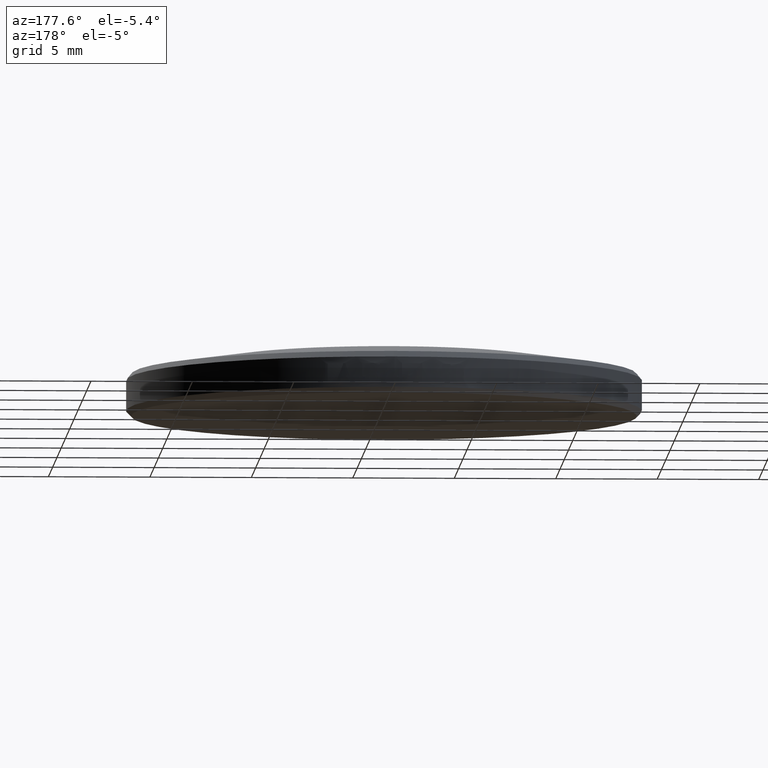
[diagram: clean part render]
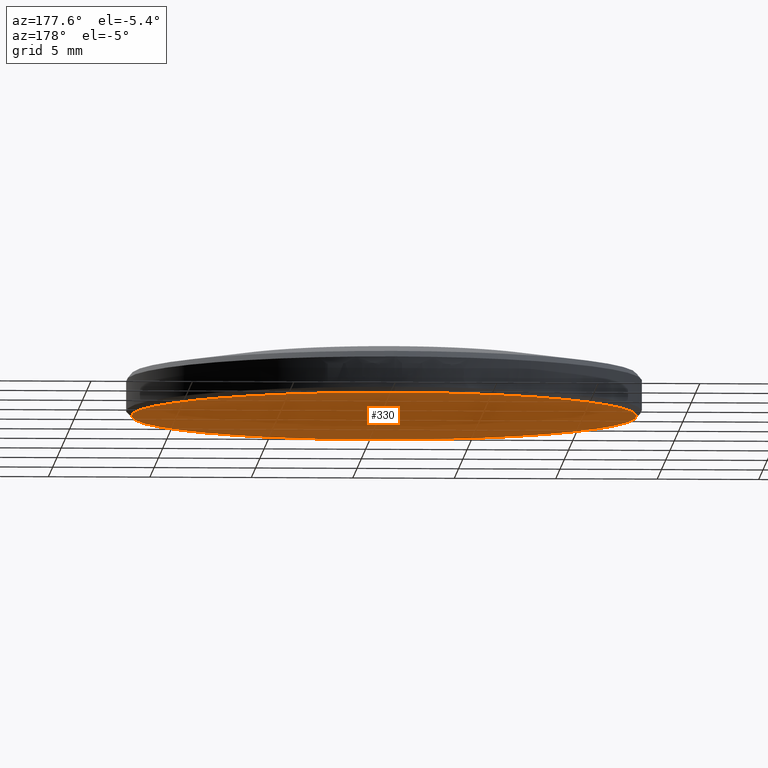
[diagram: same view with one face highlighted and labeled with its STEP entity id]
A machine part, auxiliary view. The second image highlights one B-rep face of the part: STEP entity #330.
In plain terms, the highlighted planar face has unit normal (-0, 0, -1).
Its self-contained STEP definition (entity closure, byte-faithful):
#72 = FACE_OUTER_BOUND ( 'NONE', #1272, .T. ) ;
#74 = DIRECTION ( 'NONE',  ( -0.0000000000000000000, 1.224646799147353207E-16, -1.000000000000000000 ) ) ;
#90 = VERTEX_POINT ( 'NONE', #1301 ) ;
#94 = CARTESIAN_POINT ( 'NONE',  ( -0.01648550022812553251, 1.353768593033155110, 0.7360616388966217949 ) ) ;
#237 = CIRCLE ( 'NONE', #2706, 0.4901574803149604809 ) ;
#288 = VERTEX_POINT ( 'NONE', #725 ) ;
#330 = ADVANCED_FACE ( 'NONE', ( #72 ), #1385, .T. ) ;
#408 = DIRECTION ( 'NONE',  ( 0.0000000000000000000, 1.000000000000000000, 0.0000000000000000000 ) ) ;
#533 = DIRECTION ( 'NONE',  ( -0.0000000000000000000, 1.224646799147353207E-16, -1.000000000000000000 ) ) ;
#559 = EDGE_CURVE ( 'NONE', #90, #288, #610, .T. ) ;
#610 = CIRCLE ( 'NONE', #1037, 0.4901574803149604809 ) ;
#725 = CARTESIAN_POINT ( 'NONE',  ( -0.01648550022812547353, 1.343926073348115757, 0.7360616388966217949 ) ) ;
#743 = AXIS2_PLACEMENT_3D ( 'NONE', #94, #74, #1416 ) ;
#927 = ORIENTED_EDGE ( 'NONE', *, *, #559, .T. ) ;
#1037 = AXIS2_PLACEMENT_3D ( 'NONE', #2129, #1709, #408 ) ;
#1186 = CARTESIAN_POINT ( 'NONE',  ( -0.01648550022812553251, 0.8537685930331552209, 0.7360616388966217949 ) ) ;
#1272 = EDGE_LOOP ( 'NONE', ( #927, #1276 ) ) ;
#1276 = ORIENTED_EDGE ( 'NONE', *, *, #2590, .T. ) ;
#1301 = CARTESIAN_POINT ( 'NONE',  ( -0.01648550022812553251, 0.3636111127181945735, 0.7360616388966217949 ) ) ;
#1385 = PLANE ( 'NONE',  #743 ) ;
#1416 = DIRECTION ( 'NONE',  ( 0.0000000000000000000, 1.000000000000000000, 1.224646799147353207E-16 ) ) ;
#1709 = DIRECTION ( 'NONE',  ( -0.0000000000000000000, 1.224646799147353207E-16, -1.000000000000000000 ) ) ;
#2034 = DIRECTION ( 'NONE',  ( 0.0000000000000000000, 1.000000000000000000, 0.0000000000000000000 ) ) ;
#2129 = CARTESIAN_POINT ( 'NONE',  ( -0.01648550022812553251, 0.8537685930331552209, 0.7360616388966217949 ) ) ;
#2590 = EDGE_CURVE ( 'NONE', #288, #90, #237, .T. ) ;
#2706 = AXIS2_PLACEMENT_3D ( 'NONE', #1186, #533, #2034 ) ;